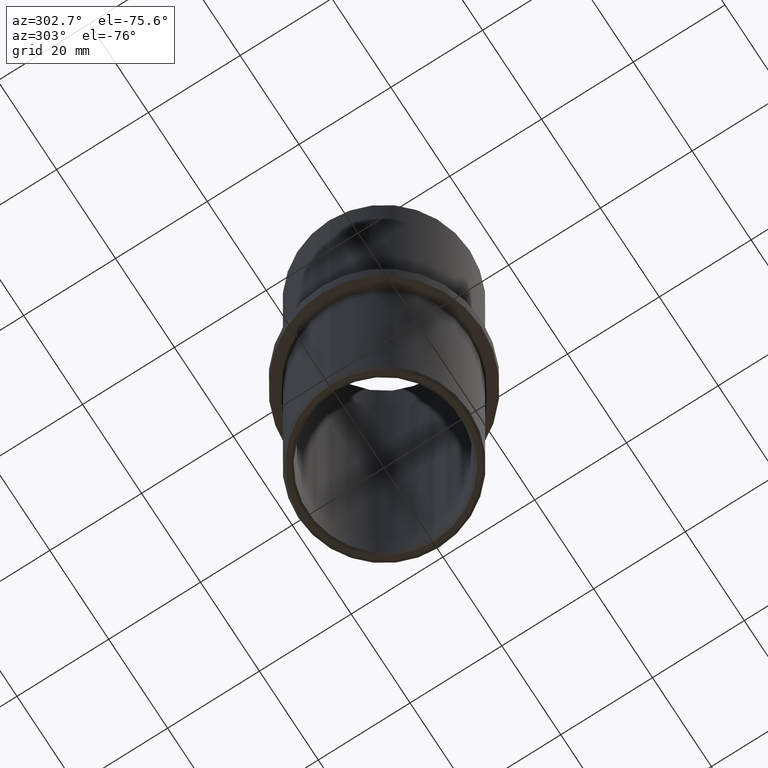
[diagram: clean part render]
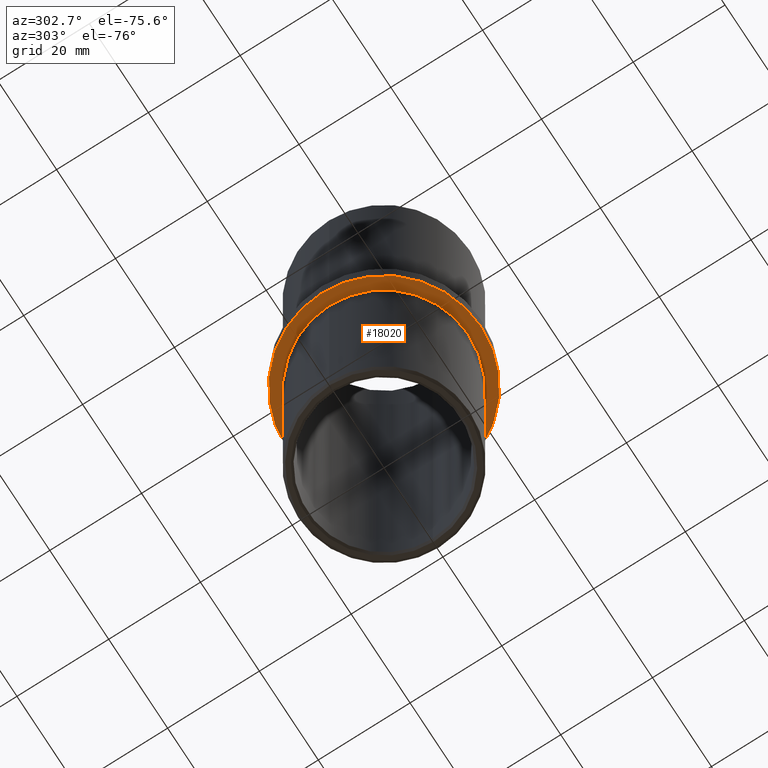
[diagram: same view with one face highlighted and labeled with its STEP entity id]
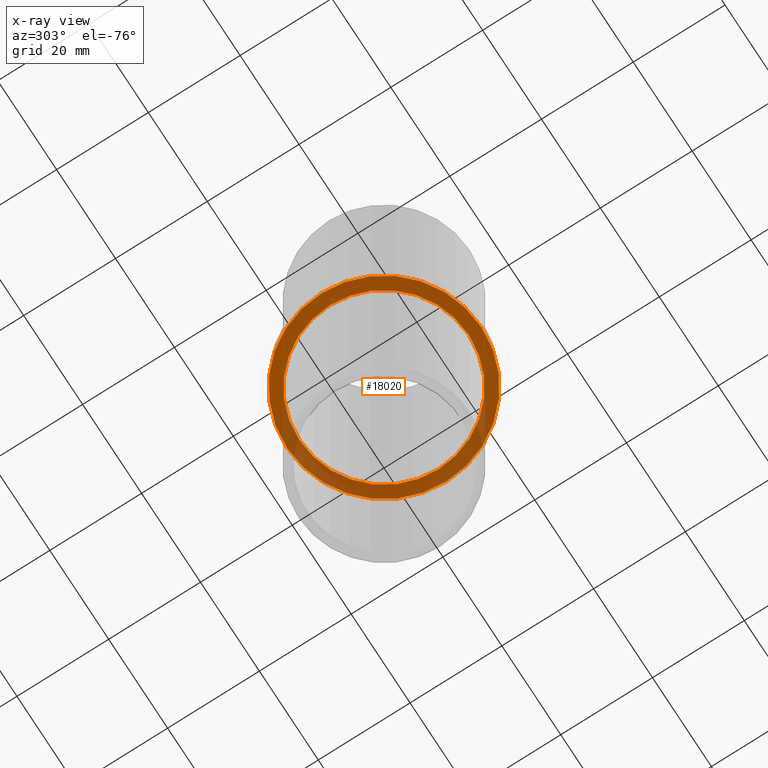
[diagram: x-ray of the same camera — body ghosted, the highlighted face saturated]
A machine part, auxiliary view. The second image highlights one B-rep face of the part: STEP entity #18020.
The next image is the same camera in x-ray: the body ghosted, the highlighted face saturated — about 28% of this face is hidden behind the body in this view.
In plain terms, the highlighted planar face has unit normal (0, 0, -1).
Its self-contained STEP definition (entity closure, byte-faithful):
#29 = CARTESIAN_POINT ( 'NONE',  ( 18.45000000000000300, -2.259473344426867100E-015, -2.500000000000000000 ) ) ;
#729 = DIRECTION ( 'NONE',  ( 1.000000000000000000, 0.0000000000000000000, 0.0000000000000000000 ) ) ;
#774 = CARTESIAN_POINT ( 'NONE',  ( 0.0000000000000000000, 0.0000000000000000000, -2.500000000000000000 ) ) ;
#947 = DIRECTION ( 'NONE',  ( -0.0000000000000000000, -0.0000000000000000000, 1.000000000000000000 ) ) ;
#2318 = ORIENTED_EDGE ( 'NONE', *, *, #4075, .F. ) ;
#2643 = CIRCLE ( 'NONE', #13409, 21.19999999999999900 ) ;
#2728 = CARTESIAN_POINT ( 'NONE',  ( 0.0000000000000000000, 0.0000000000000000000, -2.500000000000000000 ) ) ;
#4075 = EDGE_CURVE ( 'NONE', #14787, #12317, #18422, .T. ) ;
#4508 = DIRECTION ( 'NONE',  ( 0.0000000000000000000, 0.0000000000000000000, -1.000000000000000000 ) ) ;
#4552 = DIRECTION ( 'NONE',  ( 1.000000000000000000, 0.0000000000000000000, 0.0000000000000000000 ) ) ;
#6067 = DIRECTION ( 'NONE',  ( -0.0000000000000000000, -0.0000000000000000000, 1.000000000000000000 ) ) ;
#6819 = ORIENTED_EDGE ( 'NONE', *, *, #8624, .F. ) ;
#7863 = CARTESIAN_POINT ( 'NONE',  ( 0.0000000000000000000, 0.0000000000000000000, -2.500000000000000000 ) ) ;
#8074 = DIRECTION ( 'NONE',  ( -0.0000000000000000000, -0.0000000000000000000, 1.000000000000000000 ) ) ;
#8624 = EDGE_CURVE ( 'NONE', #12317, #14787, #2643, .T. ) ;
#9996 = AXIS2_PLACEMENT_3D ( 'NONE', #2728, #8074, #15635 ) ;
#11130 = CIRCLE ( 'NONE', #9996, 18.45000000000000300 ) ;
#12067 = AXIS2_PLACEMENT_3D ( 'NONE', #774, #6067, #4552 ) ;
#12317 = VERTEX_POINT ( 'NONE', #12401 ) ;
#12318 = EDGE_LOOP ( 'NONE', ( #23145, #22936 ) ) ;
#12401 = CARTESIAN_POINT ( 'NONE',  ( 21.19999999999999900, 2.596251214192388800E-015, -2.500000000000000000 ) ) ;
#12633 = FACE_BOUND ( 'NONE', #12318, .T. ) ;
#13409 = AXIS2_PLACEMENT_3D ( 'NONE', #14960, #15028, #16903 ) ;
#13617 = EDGE_CURVE ( 'NONE', #14837, #14069, #16912, .T. ) ;
#14069 = VERTEX_POINT ( 'NONE', #29 ) ;
#14787 = VERTEX_POINT ( 'NONE', #18786 ) ;
#14837 = VERTEX_POINT ( 'NONE', #17111 ) ;
#14960 = CARTESIAN_POINT ( 'NONE',  ( 0.0000000000000000000, 0.0000000000000000000, -2.500000000000000000 ) ) ;
#15028 = DIRECTION ( 'NONE',  ( -0.0000000000000000000, -0.0000000000000000000, 1.000000000000000000 ) ) ;
#15635 = DIRECTION ( 'NONE',  ( 1.000000000000000000, 0.0000000000000000000, 0.0000000000000000000 ) ) ;
#15941 = EDGE_CURVE ( 'NONE', #14069, #14837, #11130, .T. ) ;
#16405 = EDGE_LOOP ( 'NONE', ( #2318, #6819 ) ) ;
#16903 = DIRECTION ( 'NONE',  ( 1.000000000000000000, 0.0000000000000000000, 0.0000000000000000000 ) ) ;
#16912 = CIRCLE ( 'NONE', #12067, 18.45000000000000300 ) ;
#17111 = CARTESIAN_POINT ( 'NONE',  ( -18.45000000000000300, 0.0000000000000000000, -2.500000000000000000 ) ) ;
#17565 = CARTESIAN_POINT ( 'NONE',  ( 0.0000000000000000000, 0.0000000000000000000, -2.500000000000000000 ) ) ;
#18020 = ADVANCED_FACE ( 'NONE', ( #12633, #18088 ), #18942, .T. ) ;
#18088 = FACE_OUTER_BOUND ( 'NONE', #16405, .T. ) ;
#18415 = AXIS2_PLACEMENT_3D ( 'NONE', #17565, #947, #19556 ) ;
#18422 = CIRCLE ( 'NONE', #18415, 21.19999999999999900 ) ;
#18786 = CARTESIAN_POINT ( 'NONE',  ( -21.19999999999999900, 0.0000000000000000000, -2.500000000000000000 ) ) ;
#18942 = PLANE ( 'NONE',  #23238 ) ;
#19556 = DIRECTION ( 'NONE',  ( 1.000000000000000000, 0.0000000000000000000, 0.0000000000000000000 ) ) ;
#22936 = ORIENTED_EDGE ( 'NONE', *, *, #15941, .T. ) ;
#23145 = ORIENTED_EDGE ( 'NONE', *, *, #13617, .T. ) ;
#23238 = AXIS2_PLACEMENT_3D ( 'NONE', #7863, #4508, #729 ) ;